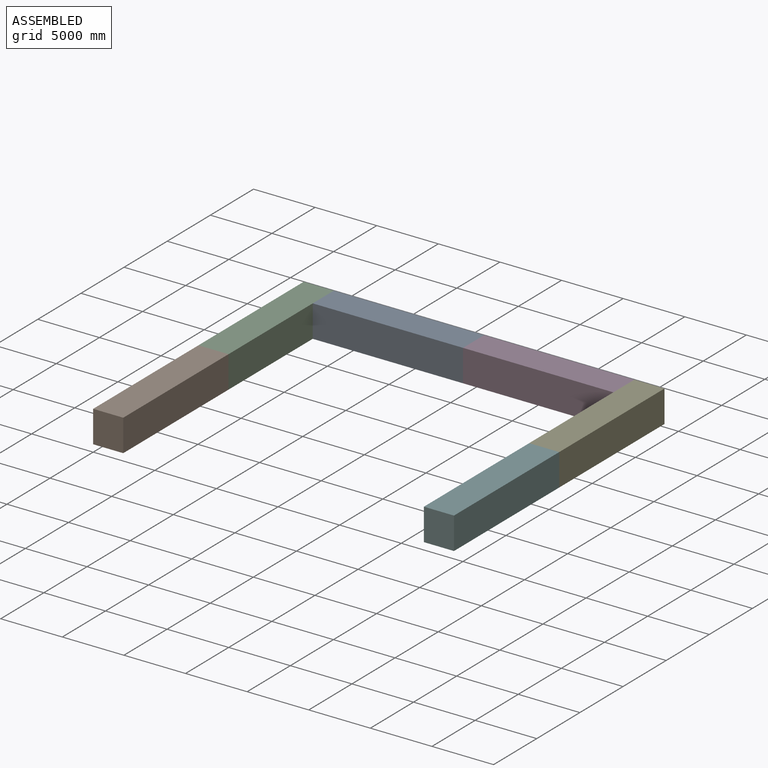
[diagram: assembled view]
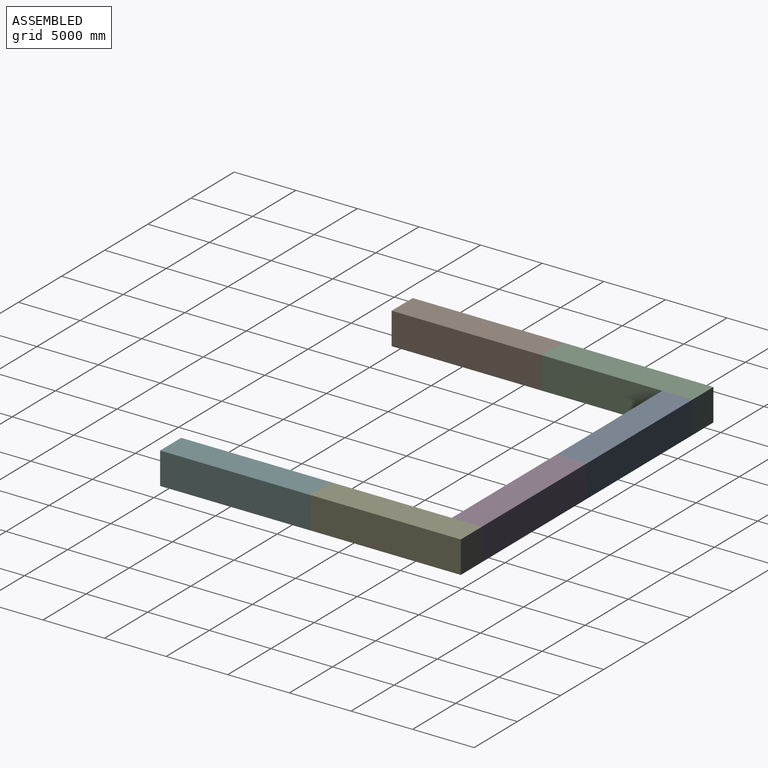
[diagram: assembled view, second angle]
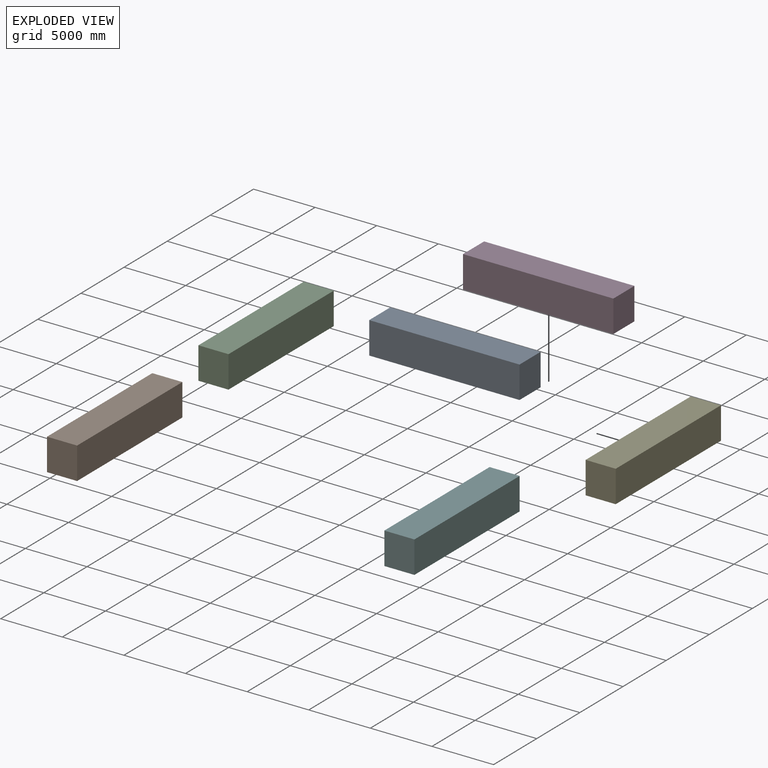
[diagram: exploded view]
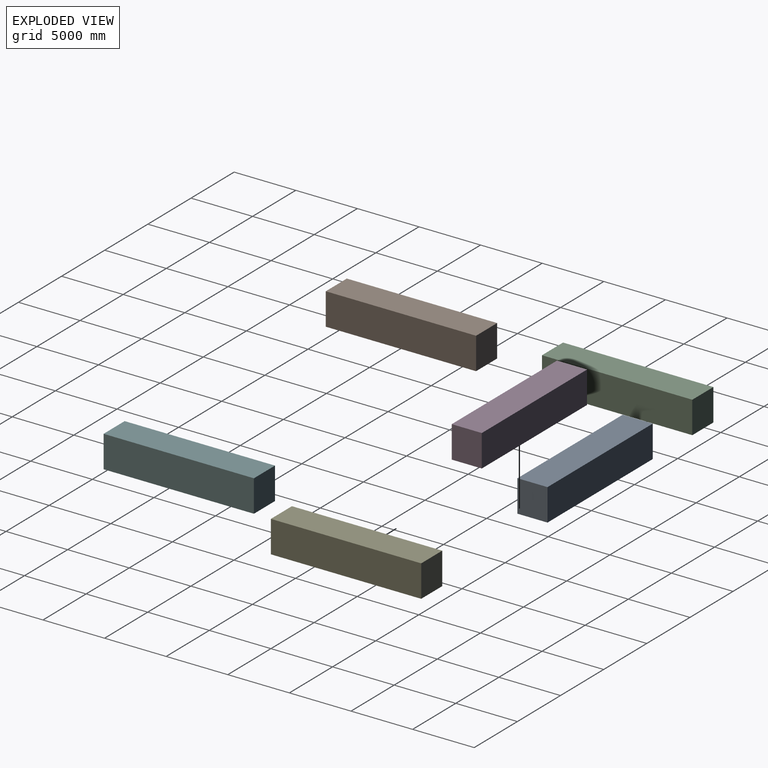
[diagram: exploded view, second angle]
ASSEMBLY  parts=6 mates=6
PART A: 6 faces, bbox 2440x12200x2600 mm
  f0: plane 12200x2600mm, normal (1,0,0), area 31720000mm2, adj f1,f3,f4,f5
  f1: plane 2600x2440mm, normal (0,1,0), area 6344000mm2, adj f0,f2,f4,f5
  f2: plane 12200x2600mm, normal (-1,0,0), area 31720000mm2, adj f1,f3,f4,f5
  f3: plane 2600x2440mm, normal (0,-1,0), area 6344000mm2, adj f0,f2,f4,f5
  f4: plane 12200x2440mm, normal (0,0,1), area 29768000mm2, adj f0,f1,f2,f3
  f5: plane 12200x2440mm, normal (0,0,-1), area 29768000mm2, adj f0,f1,f2,f3
PART B: same geometry as A
PART C: same geometry as A
PART D: same geometry as A
PART E: same geometry as A
PART F: same geometry as A
PLACE A rot(axis=(0,0,-1),90deg) t=(8540,23180,0)mm
PLACE B t=(1220,6100,0)mm
PLACE C t=(1220,18300,0)mm
PLACE D rot(axis=(0,0,-1),90deg) t=(20740,23180,0)mm
PLACE E t=(28060,18300,0)mm
PLACE F t=(28060,6100,0)mm
MATE fastened F.f4 <-> E.f4  axis (0,0,1) through (29280,12200,2600)mm
MATE planar B.f1 <-> C.f3  axis (0,1,0) through (1220,12200,1300)mm
MATE fastened A.f4 <-> C.f4  axis (0,0,1) through (2440,24400,2600)mm
MATE fastened E.f4 <-> D.f4  axis (0,0,1) through (26840,24400,2600)mm
MATE fastened B.f4 <-> C.f4  axis (0,0,1) through (2440,12200,2600)mm
MATE fastened A.f4 <-> D.f4  axis (0,0,1) through (14640,21960,2600)mm
